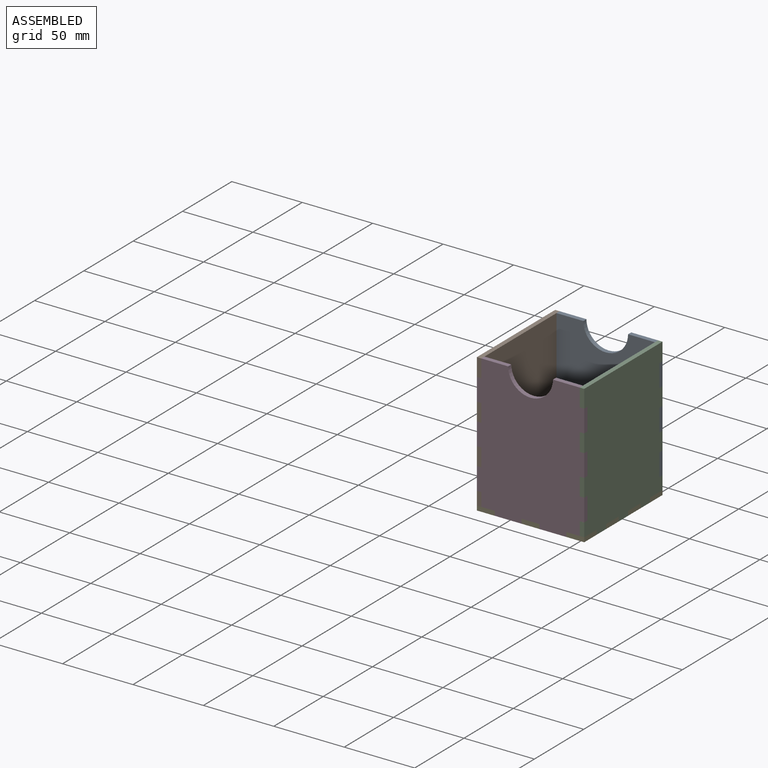
[diagram: assembled view]
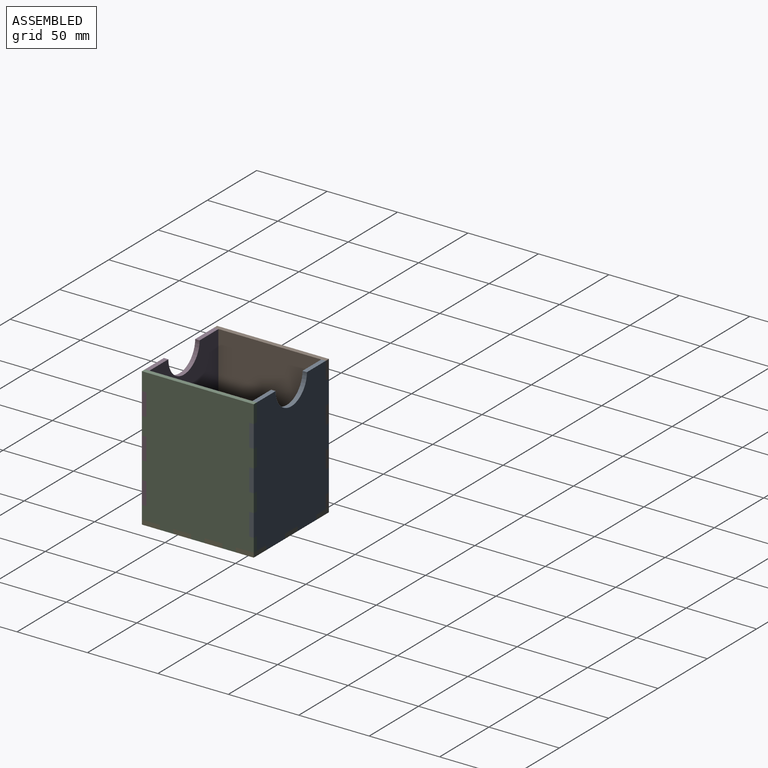
[diagram: assembled view, second angle]
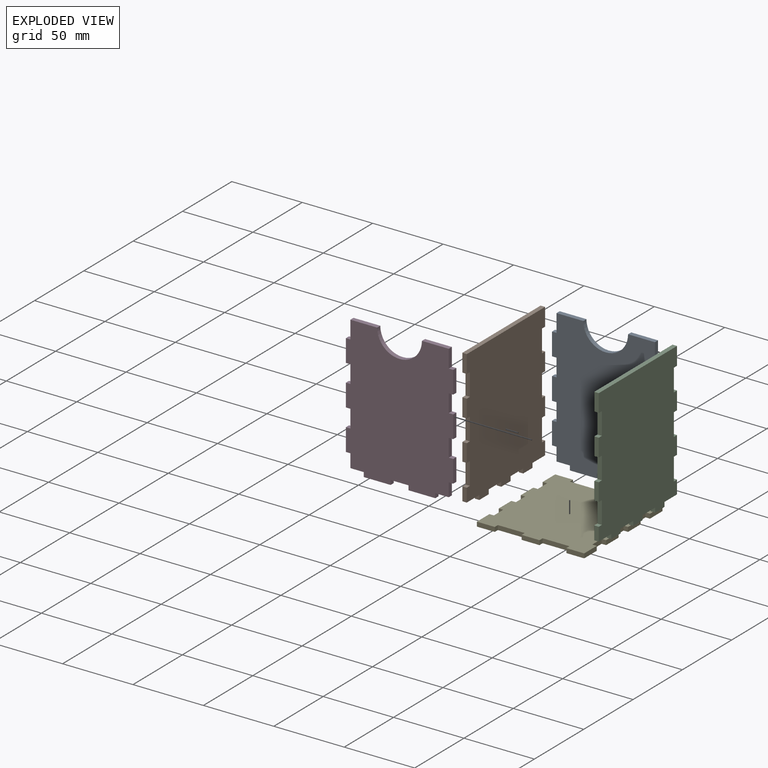
[diagram: exploded view]
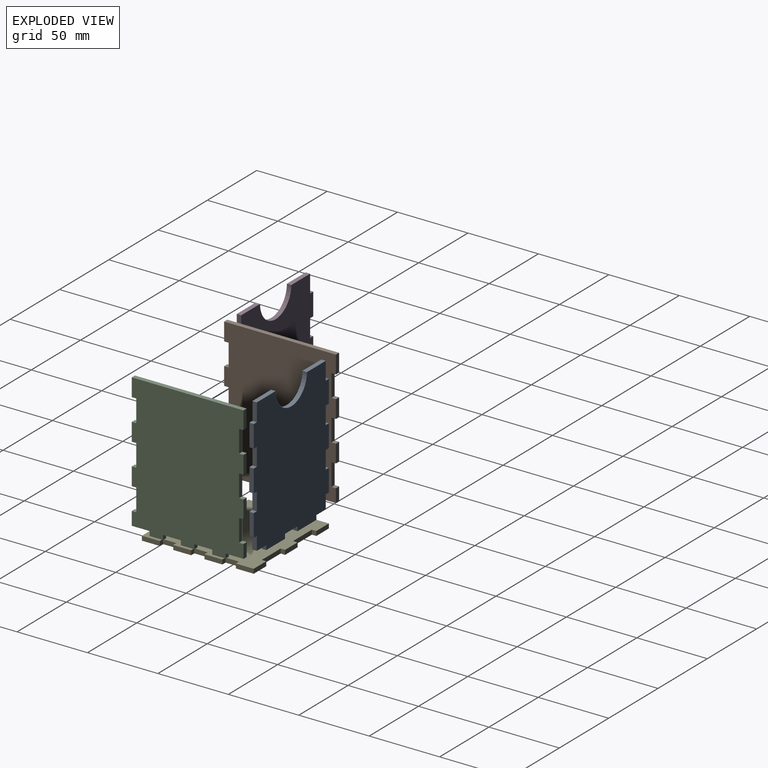
[diagram: exploded view, second angle]
ASSEMBLY  parts=5 mates=4
PART A: 40 faces, bbox 76.2x3.2x98.4 mm
  f0: plane 19.05x3.18mm, normal (0,0,-1), area 60.5mm2, adj f8,f9,f34,f39
  f1: plane 15.88x3.18mm, normal (-1,0,0), area 50.4mm2, adj f8,f9,f35,f36
  f2: plane 15.88x3.18mm, normal (-1,0,0), area 50.4mm2, adj f8,f9,f19,f25
  f3: plane 15.88x3.18mm, normal (-1,0,0), area 50.4mm2, adj f8,f9,f23,f38
  f4: plane 15.88x3.18mm, normal (1,0,0), area 50.4mm2, adj f8,f9,f26,f29
  f5: plane 15.88x3.18mm, normal (1,0,0), area 50.4mm2, adj f8,f9,f21,f30
  f6: plane 15.88x3.18mm, normal (1,0,0), area 50.4mm2, adj f8,f9,f28,f32
  f7: plane 19.05x3.18mm, normal (0,0,-1), area 60.5mm2, adj f8,f9,f33,f39
  f8: plane 98.43x76.2mm, normal (0,-1,0), area 6680.7mm2, adj f0,f1,f2,f3,f4,f5,f6,f7
  f9: plane 98.43x76.2mm, normal (0,1,0), area 6680.7mm2, adj f0,f1,f2,f3,f4,f5,f6,f7
  f10: plane 9.53x3.18mm, normal (0,0,1), area 30.2mm2, adj f8,f9,f18,f20
  f11: plane 19.05x3.18mm, normal (0,0,1), area 60.5mm2, adj f8,f9,f15,f18
  f12: plane 19.05x3.18mm, normal (0,0,1), area 60.5mm2, adj f8,f9,f13,f17
  f13: plane 3.18x3.18mm, normal (1,0,0), area 10.1mm2, adj f8,f9,f12,f14
  f14: plane 9.53x3.18mm, normal (0,0,1), area 30.2mm2, adj f8,f9,f13,f22
  f15: plane 3.18x3.18mm, normal (1,0,0), area 10.1mm2, adj f8,f9,f11,f16
  f16: plane 12.7x3.18mm, normal (0,0,1), area 40.3mm2, adj f8,f9,f15,f17
  f17: plane 3.18x3.18mm, normal (-1,0,0), area 10.1mm2, adj f8,f9,f12,f16
  f18: plane 3.18x3.18mm, normal (-1,0,0), area 10.1mm2, adj f8,f9,f10,f11
  f19: plane 3.18x3.18mm, normal (0,0,1), area 10.1mm2, adj f2,f8,f9,f20
  f20: plane 9.53x3.18mm, normal (-1,0,0), area 30.2mm2, adj f8,f9,f10,f19
  f21: plane 3.18x3.18mm, normal (0,0,1), area 10.1mm2, adj f5,f8,f9,f22
  f22: plane 9.53x3.18mm, normal (1,0,0), area 30.2mm2, adj f8,f9,f14,f21
  f23: plane 3.18x3.18mm, normal (0,0,1), area 10.1mm2, adj f3,f8,f9,f24
  f24: plane 12.7x3.18mm, normal (-1,0,0), area 40.3mm2, adj f8,f9,f23,f25
  f25: plane 3.18x3.18mm, normal (0,0,-1), area 10.1mm2, adj f2,f8,f9,f24
  f26: plane 3.18x3.18mm, normal (0,0,-1), area 10.1mm2, adj f4,f8,f9,f27
  f27: plane 12.7x3.18mm, normal (1,0,0), area 40.3mm2, adj f8,f9,f26,f28
  f28: plane 3.18x3.18mm, normal (0,0,1), area 10.1mm2, adj f6,f8,f9,f27
  f29: plane 3.18x3.18mm, normal (0,0,1), area 10.1mm2, adj f4,f8,f9,f31
  f30: plane 3.18x3.18mm, normal (0,0,-1), area 10.1mm2, adj f5,f8,f9,f31
  f31: plane 12.7x3.18mm, normal (1,0,0), area 40.3mm2, adj f8,f9,f29,f30
  f32: plane 3.18x3.18mm, normal (0,0,-1), area 10.1mm2, adj f6,f8,f9,f33
  f33: plane 12.7x3.18mm, normal (1,0,0), area 40.3mm2, adj f7,f8,f9,f32
  f34: plane 12.7x3.18mm, normal (-1,0,0), area 40.3mm2, adj f0,f8,f9,f35
  f35: plane 3.18x3.18mm, normal (0,0,-1), area 10.1mm2, adj f1,f8,f9,f34
  f36: plane 3.18x3.18mm, normal (0,0,1), area 10.1mm2, adj f1,f8,f9,f37
  f37: plane 12.7x3.18mm, normal (-1,0,0), area 40.3mm2, adj f8,f9,f36,f38
  f38: plane 3.18x3.18mm, normal (0,0,-1), area 10.1mm2, adj f3,f8,f9,f37
  f39: extruded ~31.75x15.88mm, area 158.3mm2, adj f0,f7,f8,f9
PART B: 42 faces, bbox 3.2x79.4x98.4 mm
  f0: plane 9.53x3.18mm, normal (0,-1,0), area 30.2mm2, adj f5,f6,f16,f41
  f1: plane 9.53x3.18mm, normal (0,1,0), area 30.2mm2, adj f5,f6,f23,f33
  f2: plane 9.53x3.18mm, normal (0,0,1), area 30.2mm2, adj f5,f6,f37,f40
  f3: plane 9.53x3.18mm, normal (0,0,1), area 30.2mm2, adj f5,f6,f34,f39
  f4: plane 9.53x3.18mm, normal (0,0,1), area 30.2mm2, adj f5,f6,f32,f36
  f5: plane 98.43x79.38mm, normal (1,0,0), area 7348.8mm2, adj f0,f1,f2,f3,f4,f7,f8,f9
  f6: plane 98.43x79.38mm, normal (-1,0,0), area 7348.8mm2, adj f0,f1,f2,f3,f4,f7,f8,f9
  f7: plane 12.7x3.18mm, normal (0,-1,0), area 40.3mm2, adj f5,f6,f26,f30
  f8: plane 12.7x3.18mm, normal (0,-1,0), area 40.3mm2, adj f5,f6,f13,f27
  f9: plane 12.7x3.18mm, normal (0,-1,0), area 40.3mm2, adj f5,f6,f14,f29
  f10: plane 12.7x3.18mm, normal (0,1,0), area 40.3mm2, adj f5,f6,f17,f25
  f11: plane 12.7x3.18mm, normal (0,1,0), area 40.3mm2, adj f5,f6,f13,f22
  f12: plane 12.7x3.18mm, normal (0,1,0), area 40.3mm2, adj f5,f6,f19,f20
  f13: plane 79.38x3.18mm, normal (0,0,-1), area 252mm2, adj f5,f6,f8,f11
  f14: plane 3.18x3.18mm, normal (0,0,1), area 10.1mm2, adj f5,f6,f9,f15
  f15: plane 15.88x3.18mm, normal (0,-1,0), area 50.4mm2, adj f5,f6,f14,f16
  f16: plane 3.18x3.18mm, normal (0,0,-1), area 10.1mm2, adj f0,f5,f6,f15
  f17: plane 3.18x3.18mm, normal (0,0,-1), area 10.1mm2, adj f5,f6,f10,f18
  f18: plane 15.88x3.18mm, normal (0,1,0), area 50.4mm2, adj f5,f6,f17,f19
  f19: plane 3.18x3.18mm, normal (0,0,1), area 10.1mm2, adj f5,f6,f12,f18
  f20: plane 3.18x3.18mm, normal (0,0,-1), area 10.1mm2, adj f5,f6,f12,f21
  f21: plane 15.88x3.18mm, normal (0,1,0), area 50.4mm2, adj f5,f6,f20,f22
  f22: plane 3.18x3.18mm, normal (0,0,1), area 10.1mm2, adj f5,f6,f11,f21
  f23: plane 3.18x3.18mm, normal (0,0,-1), area 10.1mm2, adj f1,f5,f6,f24
  f24: plane 15.88x3.18mm, normal (0,1,0), area 50.4mm2, adj f5,f6,f23,f25
  f25: plane 3.18x3.18mm, normal (0,0,1), area 10.1mm2, adj f5,f6,f10,f24
  f26: plane 3.18x3.18mm, normal (0,0,-1), area 10.1mm2, adj f5,f6,f7,f28
  f27: plane 3.18x3.18mm, normal (0,0,1), area 10.1mm2, adj f5,f6,f8,f28
  f28: plane 15.88x3.18mm, normal (0,-1,0), area 50.4mm2, adj f5,f6,f26,f27
  f29: plane 3.18x3.18mm, normal (0,0,-1), area 10.1mm2, adj f5,f6,f9,f31
  f30: plane 3.18x3.18mm, normal (0,0,1), area 10.1mm2, adj f5,f6,f7,f31
  f31: plane 15.88x3.18mm, normal (0,-1,0), area 50.4mm2, adj f5,f6,f29,f30
  f32: plane 3.18x3.18mm, normal (0,1,0), area 10.1mm2, adj f4,f5,f6,f33
  f33: plane 12.7x3.18mm, normal (0,0,1), area 40.3mm2, adj f1,f5,f6,f32
  f34: plane 3.18x3.18mm, normal (0,1,0), area 10.1mm2, adj f3,f5,f6,f35
  f35: plane 12.7x3.18mm, normal (0,0,1), area 40.3mm2, adj f5,f6,f34,f36
  f36: plane 3.18x3.18mm, normal (0,-1,0), area 10.1mm2, adj f4,f5,f6,f35
  f37: plane 3.18x3.18mm, normal (0,1,0), area 10.1mm2, adj f2,f5,f6,f38
  f38: plane 12.7x3.18mm, normal (0,0,1), area 40.3mm2, adj f5,f6,f37,f39
  f39: plane 3.18x3.18mm, normal (0,-1,0), area 10.1mm2, adj f3,f5,f6,f38
  f40: plane 3.18x3.18mm, normal (0,-1,0), area 10.1mm2, adj f2,f5,f6,f41
  f41: plane 12.7x3.18mm, normal (0,0,1), area 40.3mm2, adj f0,f5,f6,f40
PART C: same geometry as B
PART D: same geometry as A
PART E: 46 faces, bbox 76.2x79.4x3.2 mm
  f0: plane 12.7x3.18mm, normal (-1,0,0), area 40.3mm2, adj f6,f7,f13,f34
  f1: plane 12.7x3.18mm, normal (-1,0,0), area 40.3mm2, adj f6,f7,f31,f36
  f2: plane 12.7x3.18mm, normal (-1,0,0), area 40.3mm2, adj f6,f7,f28,f33
  f3: plane 12.7x3.18mm, normal (1,0,0), area 40.3mm2, adj f6,f7,f40,f43
  f4: plane 12.7x3.18mm, normal (1,0,0), area 40.3mm2, adj f6,f7,f37,f42
  f5: plane 12.7x3.18mm, normal (1,0,0), area 40.3mm2, adj f6,f7,f9,f39
  f6: plane 79.38x76.2mm, normal (0,0,1), area 5625mm2, adj f0,f1,f2,f3,f4,f5,f8,f9
  f7: plane 79.38x76.2mm, normal (0,0,-1), area 5625mm2, adj f0,f1,f2,f3,f4,f5,f8,f9
  f8: plane 12.7x3.18mm, normal (0,-1,0), area 40.3mm2, adj f6,f7,f22,f25
  f9: plane 12.7x3.18mm, normal (0,-1,0), area 40.3mm2, adj f5,f6,f7,f23
  f10: plane 12.7x3.18mm, normal (0,1,0), area 40.3mm2, adj f6,f7,f14,f21
  f11: plane 12.7x3.18mm, normal (0,1,0), area 40.3mm2, adj f6,f7,f16,f19
  f12: plane 12.7x3.18mm, normal (-1,0,0), area 40.3mm2, adj f6,f7,f15,f30
  f13: plane 12.7x3.18mm, normal (0,-1,0), area 40.3mm2, adj f0,f6,f7,f27
  f14: plane 12.7x3.18mm, normal (1,0,0), area 40.3mm2, adj f6,f7,f10,f44
  f15: plane 12.7x3.18mm, normal (0,1,0), area 40.3mm2, adj f6,f7,f12,f17
  f16: plane 3.18x3.18mm, normal (-1,0,0), area 10.1mm2, adj f6,f7,f11,f18
  f17: plane 3.18x3.18mm, normal (1,0,0), area 10.1mm2, adj f6,f7,f15,f18
  f18: plane 19.05x3.18mm, normal (0,1,0), area 60.5mm2, adj f6,f7,f16,f17
  f19: plane 3.18x3.18mm, normal (1,0,0), area 10.1mm2, adj f6,f7,f11,f20
  f20: plane 19.05x3.18mm, normal (0,1,0), area 60.5mm2, adj f6,f7,f19,f21
  f21: plane 3.18x3.18mm, normal (-1,0,0), area 10.1mm2, adj f6,f7,f10,f20
  f22: plane 3.18x3.18mm, normal (1,0,0), area 10.1mm2, adj f6,f7,f8,f24
  f23: plane 3.18x3.18mm, normal (-1,0,0), area 10.1mm2, adj f6,f7,f9,f24
  f24: plane 19.05x3.18mm, normal (0,-1,0), area 60.5mm2, adj f6,f7,f22,f23
  f25: plane 3.18x3.18mm, normal (-1,0,0), area 10.1mm2, adj f6,f7,f8,f26
  f26: plane 19.05x3.18mm, normal (0,-1,0), area 60.5mm2, adj f6,f7,f25,f27
  f27: plane 3.18x3.18mm, normal (1,0,0), area 10.1mm2, adj f6,f7,f13,f26
  f28: plane 3.18x3.18mm, normal (0,1,0), area 10.1mm2, adj f2,f6,f7,f29
  f29: plane 9.53x3.18mm, normal (-1,0,0), area 30.2mm2, adj f6,f7,f28,f30
  f30: plane 3.18x3.18mm, normal (0,-1,0), area 10.1mm2, adj f6,f7,f12,f29
  f31: plane 3.18x3.18mm, normal (0,1,0), area 10.1mm2, adj f1,f6,f7,f32
  f32: plane 9.53x3.18mm, normal (-1,0,0), area 30.2mm2, adj f6,f7,f31,f33
  f33: plane 3.18x3.18mm, normal (0,-1,0), area 10.1mm2, adj f2,f6,f7,f32
  f34: plane 3.18x3.18mm, normal (0,1,0), area 10.1mm2, adj f0,f6,f7,f35
  f35: plane 9.53x3.18mm, normal (-1,0,0), area 30.2mm2, adj f6,f7,f34,f36
  f36: plane 3.18x3.18mm, normal (0,-1,0), area 10.1mm2, adj f1,f6,f7,f35
  f37: plane 3.18x3.18mm, normal (0,-1,0), area 10.1mm2, adj f4,f6,f7,f38
  f38: plane 9.53x3.18mm, normal (1,0,0), area 30.2mm2, adj f6,f7,f37,f39
  f39: plane 3.18x3.18mm, normal (0,1,0), area 10.1mm2, adj f5,f6,f7,f38
  f40: plane 3.18x3.18mm, normal (0,-1,0), area 10.1mm2, adj f3,f6,f7,f41
  f41: plane 9.53x3.18mm, normal (1,0,0), area 30.2mm2, adj f6,f7,f40,f42
  f42: plane 3.18x3.18mm, normal (0,1,0), area 10.1mm2, adj f4,f6,f7,f41
  f43: plane 3.18x3.18mm, normal (0,1,0), area 10.1mm2, adj f3,f6,f7,f45
  f44: plane 3.18x3.18mm, normal (0,-1,0), area 10.1mm2, adj f6,f7,f14,f45
  f45: plane 9.53x3.18mm, normal (1,0,0), area 30.2mm2, adj f6,f7,f43,f44
PLACE A rot(axis=(1,0,0),180deg) t=(0,36.51,49.21)mm
PLACE B rot(axis=(-1,0,0),180deg) t=(-38.1,0,49.21)mm
PLACE C rot(axis=(-1,0,0),180deg) t=(34.93,0,49.21)mm
PLACE D rot(axis=(-1,0,0),180deg) t=(0,-39.69,49.21)mm
PLACE E at identity
MATE fastened C.f5 <-> A.f5  axis (1,0,0) through (38.1,36.51,20.64)mm
MATE fastened A.f12 <-> E.f7  axis (0,0,-1) through (15.88,36.51,0)mm
MATE fastened B.f6 <-> A.f2  axis (-1,0,0) through (-38.1,36.51,20.64)mm
MATE fastened D.f5 <-> C.f5  axis (1,0,0) through (38.1,-36.51,20.64)mm
